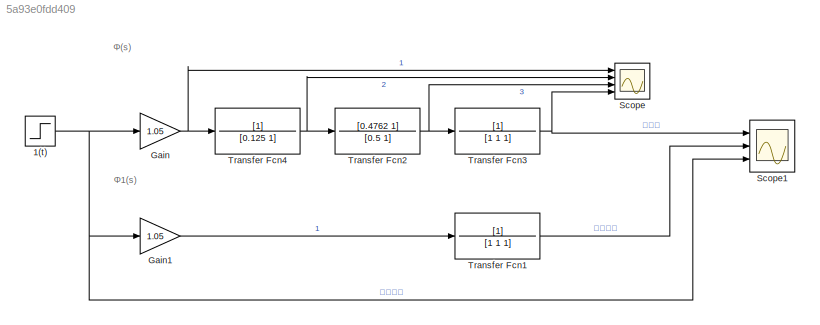
MODEL slx_5a93e0fdd409
KIND model
CONFIG AbsTol = auto
CONFIG EnableMultiTasking = off
CONFIG FixedStep = auto
CONFIG MaxStep = auto
CONFIG MinStep = auto
CONFIG RelTol = 1e-5
CONFIG SampleTimeConstraint = Unconstrained
CONFIG Solver = VariableStepAuto
CONFIG SolverName = VariableStepAuto
CONFIG StartTime = 0.0
CONFIG StopTime = 15
BLOCK [Step] 1(t)
  SampleTime = 0
BLOCK [Gain] Gain
  Gain = 1.05
  OutDataTypeStr = Inherit: Inherit via internal rule
  ParamDataTypeStr = Inherit: Inherit via internal rule
  SaturateOnIntegerOverflow = off
BLOCK [Gain] Gain1
  Gain = 1.05
  OutDataTypeStr = Inherit: Inherit via internal rule
  ParamDataTypeStr = Inherit: Inherit via internal rule
  SaturateOnIntegerOverflow = off
BLOCK [Scope] Scope
  Floating = off
  NumInputPorts = 4
  Ports = [4]
  ScopeSpecificationString = Simulink.scopes.TimeScopeBlockCfg('CurrentConfiguration', extmgr.ConfigurationSet(extmgr.Configuration('Core','General UI',true,'FigureColor',[1 1 1]),extmgr.Configuration('Core','Source UI',true),extmgr.Configuration('Sources','WiredSimulink',true,'DataLoggingVariableName','ScopeData2'),extmgr.Configuration('Visuals','Time Domain',true,'SerializedDisplays',{struct('MinYLimReal','-0.15209','MaxYLi...<+2019ch>
BLOCK [Scope] Scope1
  Floating = off
  NumInputPorts = 3
  Ports = [3]
  ScopeSpecificationString = Simulink.scopes.TimeScopeBlockCfg('CurrentConfiguration', extmgr.ConfigurationSet(extmgr.Configuration('Core','General UI',true,'FigureColor',[1 1 1]),extmgr.Configuration('Core','Source UI',true),extmgr.Configuration('Sources','WiredSimulink',true,'DataLoggingVariableName','ScopeData1'),extmgr.Configuration('Visuals','Time Domain',true,'SerializedDisplays',{struct('MinYLimReal','-0.15209','MaxYLi...<+1949ch>
BLOCK [TransferFcn] Transfer Fcn1
  Denominator = [1 1 1]
BLOCK [TransferFcn] Transfer Fcn2
  Denominator = [0.5 1]
  Numerator = [0.4762 1]
BLOCK [TransferFcn] Transfer Fcn3
  Denominator = [1 1 1]
BLOCK [TransferFcn] Transfer Fcn4
  Denominator = [0.125 1]
ANNOTATION (root): Φ(s)
ANNOTATION (root): Φ1(s)
NET 1(t):1 -> Gain1:1, Gain:1, Scope1:3
LINE Gain1:1 -> Transfer Fcn1:1
NET Gain:1 -> Scope:1, Transfer Fcn4:1
LINE Transfer Fcn1:1 -> Scope1:2
NET Transfer Fcn2:1 -> Scope:3, Transfer Fcn3:1
NET Transfer Fcn3:1 -> Scope1:1, Scope:4
NET Transfer Fcn4:1 -> Scope:2, Transfer Fcn2:1
note: NET lines group one-source signal fan-out (src -> all destinations, sorted); 1:1 wires keep LINE
